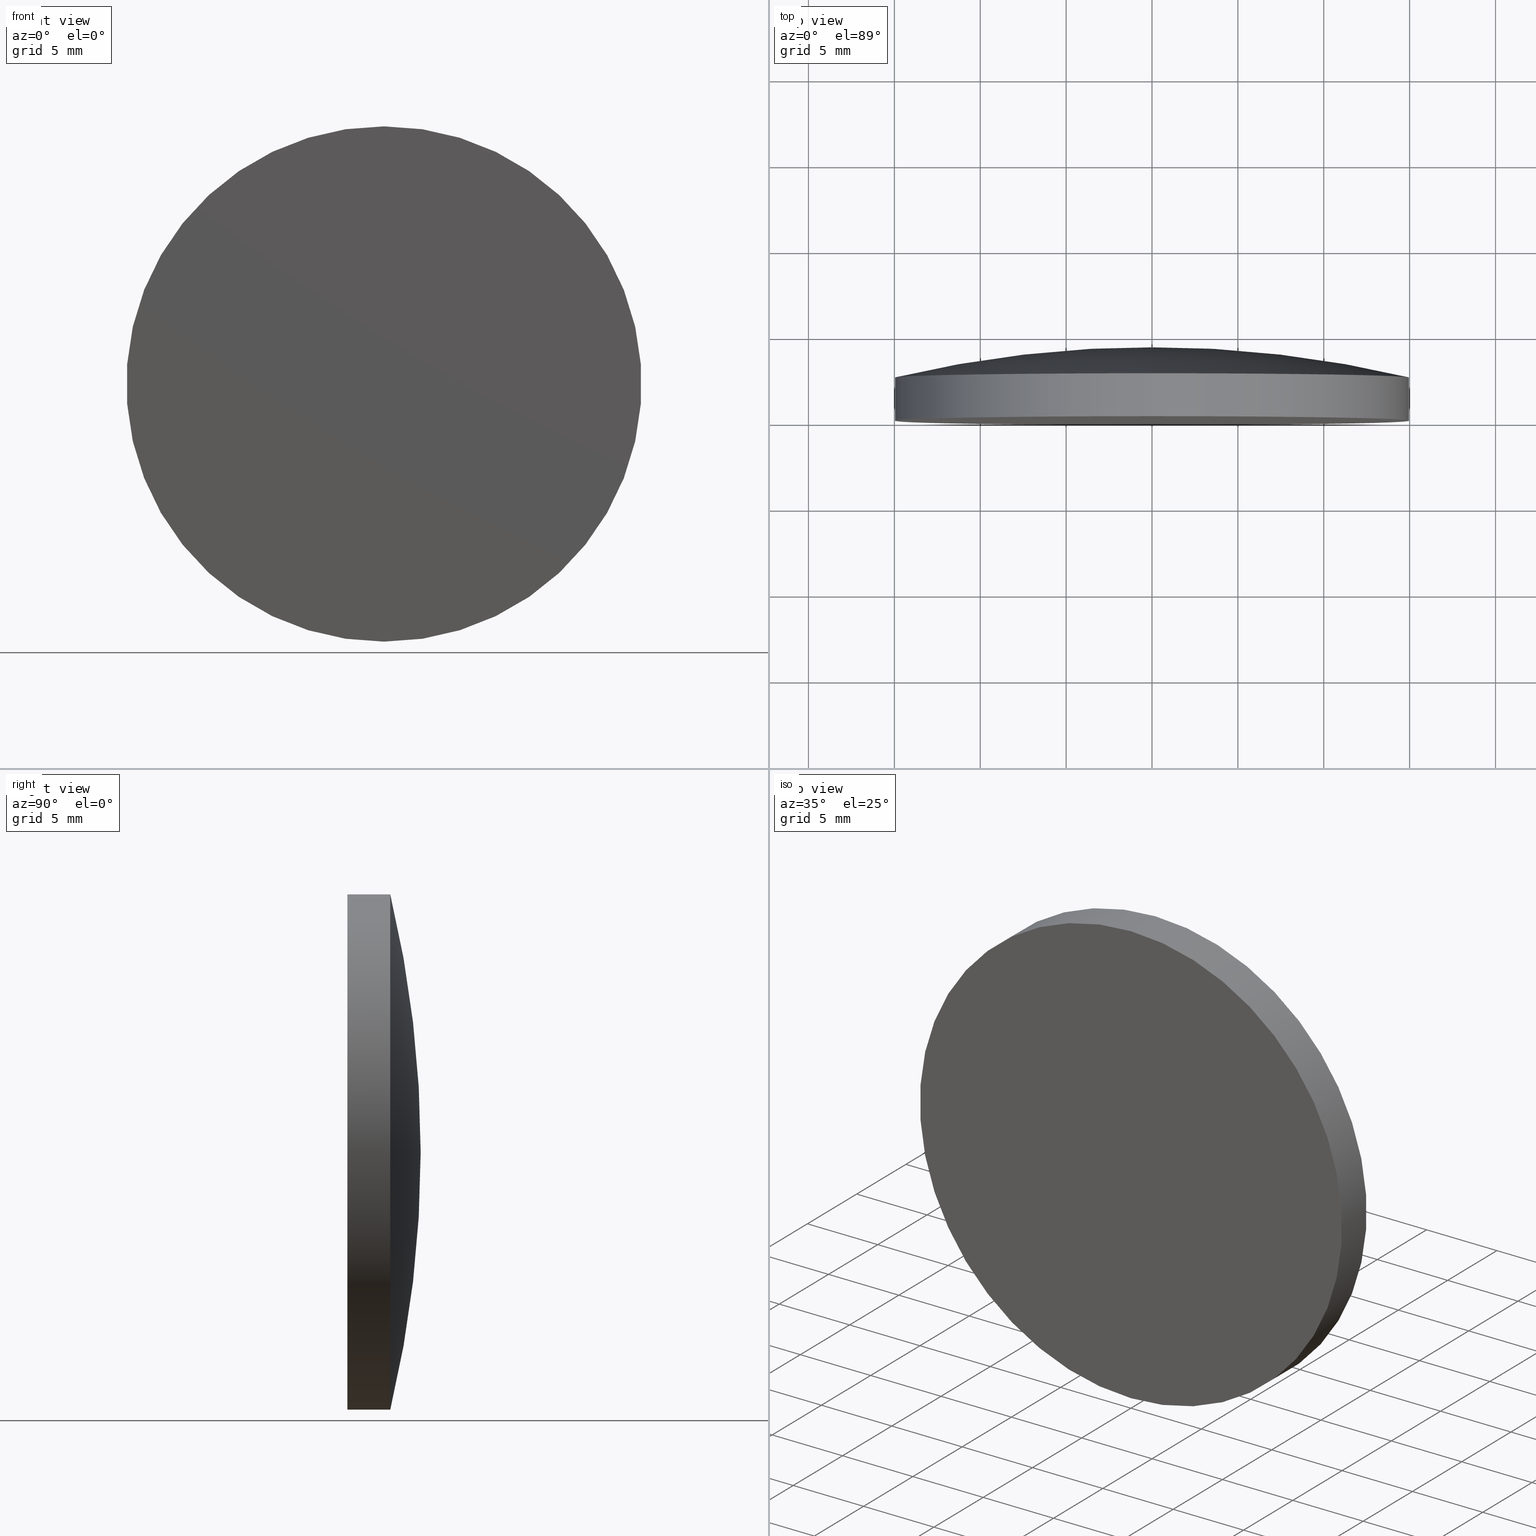
[diagram: canonical four-view strip — front | top / right | iso, engineering-drawing reading convention]
A machine part, canonical four-view strip (front | top / right | iso — engineering-drawing reading convention). The complete STEP part file that produces these views, byte-faithful:
ISO-10303-21;
HEADER;
FILE_DESCRIPTION (( 'STEP AP203' ),
    '1' );
FILE_NAME ('100553.STEP',
    '2024-05-09T01:20:41',
    ( '' ),
    ( '' ),
    'SwSTEP 2.0',
    'SolidWorks 2020',
    '' );
FILE_SCHEMA (( 'CONFIG_CONTROL_DESIGN' ));
ENDSEC;

DATA;
#1 = CARTESIAN_POINT ( 'NONE',  ( -1.527117152912117945E-18, -60.27999879552781692, 0.01246985787228902659 ) ) ;
#2 = MECHANICAL_CONTEXT ( 'NONE', #135, 'mechanical' ) ;
#3 = PERSON_AND_ORGANIZATION ( #26, #69 ) ;
#4 = APPROVAL ( #105, 'δָ��' ) ;
#5 = CARTESIAN_POINT ( 'NONE',  ( 1.836970198721029589E-15, -1.734723475976807094E-15, -15.00000000000000000 ) ) ;
#6 = EDGE_CURVE ( 'NONE', #97, #24, #102, .T. ) ;
#7 = PERSON_AND_ORGANIZATION ( #26, #69 ) ;
#8 = AXIS2_PLACEMENT_3D ( 'NONE', #77, #139, #15 ) ;
#9 = APPROVAL_STATUS ( 'not_yet_approved' ) ;
#10 = COORDINATED_UNIVERSAL_TIME_OFFSET ( 8, 0, .AHEAD. ) ;
#11 = AXIS2_PLACEMENT_3D ( 'NONE', #1, #18, #179 ) ;
#12 = DIRECTION ( 'NONE',  ( -0.000000000000000000, 1.000000000000000000, -0.000000000000000000 ) ) ;
#13 = CARTESIAN_POINT ( 'NONE',  ( 0.000000000000000000, -60.27999879552781692, -0.01246985787228902659 ) ) ;
#14 = CARTESIAN_POINT ( 'NONE',  ( 1.836970198721029589E-15, 2.499999999999996891, -15.00000000000000000 ) ) ;
#15 = DIRECTION ( 'NONE',  ( 0.000000000000000000, 0.000000000000000000, 1.000000000000000000 ) ) ;
#16 = LOCAL_TIME ( 9, 20, 41.00000000000000000, #57 ) ;
#17 = CARTESIAN_POINT ( 'NONE',  ( 0.000000000000000000, 4.269999999999999574, 0.000000000000000000 ) ) ;
#18 = DIRECTION ( 'NONE',  ( 1.000000000000000000, 0.000000000000000000, 1.224646799147353207E-16 ) ) ;
#19 = ADVANCED_FACE ( 'NONE', ( #184 ), #100, .T. ) ;
#20 = APPROVAL_ROLE ( '' ) ;
#21 = DATE_AND_TIME ( #117, #16 ) ;
#22 = CC_DESIGN_APPROVAL ( #130, ( #68 ) ) ;
#23 = DIRECTION ( 'NONE',  ( 0.000000000000000000, 0.000000000000000000, 1.000000000000000000 ) ) ;
#24 = VERTEX_POINT ( 'NONE', #65 ) ;
#25 = APPROVAL_DATE_TIME ( #168, #4 ) ;
#26 = PERSON ( 'δָ��', 'δָ��', 'δָ��', ('δָ��'), ('δָ��'), ('δָ��') ) ;
#27 = AXIS2_PLACEMENT_3D ( 'NONE', #73, #134, #193 ) ;
#28 = PERSON_AND_ORGANIZATION_ROLE ( 'classification_officer' ) ;
#29 = ORIENTED_EDGE ( 'NONE', *, *, #186, .F. ) ;
#30 = TOROIDAL_SURFACE ( 'NONE', #27, -0.01246985787228902659, 64.54999999999998295 ) ;
#31 = DIRECTION ( 'NONE',  ( -1.000000000000000000, 0.000000000000000000, 0.000000000000000000 ) ) ;
#32 = MANIFOLD_SOLID_BREP ( '��ת1', #138 ) ;
#33 = DIRECTION ( 'NONE',  ( 0.000000000000000000, 0.000000000000000000, 1.000000000000000000 ) ) ;
#34 = CC_DESIGN_DATE_AND_TIME_ASSIGNMENT ( #21, #71, ( #68 ) ) ;
#35 = CYLINDRICAL_SURFACE ( 'NONE', #163, 15.00000000000000000 ) ;
#36 = FACE_OUTER_BOUND ( 'NONE', #93, .T. ) ;
#37 = APPROVAL_PERSON_ORGANIZATION ( #125, #78, #183 ) ;
#38 = AXIS2_PLACEMENT_3D ( 'NONE', #62, #174, #33 ) ;
#39 = CALENDAR_DATE ( 2024, 9, 5 ) ;
#40 =( NAMED_UNIT ( * ) PLANE_ANGLE_UNIT ( ) SI_UNIT ( $, .RADIAN. ) );
#41 = CC_DESIGN_APPROVAL ( #4, ( #122 ) ) ;
#42 = CALENDAR_DATE ( 2024, 9, 5 ) ;
#43 = DATE_AND_TIME ( #39, #111 ) ;
#44 = SHAPE_DEFINITION_REPRESENTATION ( #53, #84 ) ;
#45 = DATE_AND_TIME ( #158, #72 ) ;
#46 = DIRECTION ( 'NONE',  ( 0.000000000000000000, 0.000000000000000000, 1.000000000000000000 ) ) ;
#47 = SECURITY_CLASSIFICATION ( '', '', #150 ) ;
#48 = ORIENTED_EDGE ( 'NONE', *, *, #186, .T. ) ;
#49 = CARTESIAN_POINT ( 'NONE',  ( 0.000000000000000000, -9.184850993605147944E-16, 0.000000000000000000 ) ) ;
#50 = DIRECTION ( 'NONE',  ( -0.000000000000000000, 1.000000000000000000, -0.000000000000000000 ) ) ;
#51 = AXIS2_PLACEMENT_3D ( 'NONE', #156, #50, #126 ) ;
#52 = EDGE_CURVE ( 'NONE', #97, #190, #76, .T. ) ;
#53 = PRODUCT_DEFINITION_SHAPE ( 'NONE', 'NONE',  #68 ) ;
#54 = ORIENTED_EDGE ( 'NONE', *, *, #58, .T. ) ;
#55 = CC_DESIGN_PERSON_AND_ORGANIZATION_ASSIGNMENT ( #3, #70, ( #68 ) ) ;
#56 = APPLICATION_PROTOCOL_DEFINITION ( 'international standard', 'config_control_design', 1994, #80 ) ;
#57 = COORDINATED_UNIVERSAL_TIME_OFFSET ( 8, 0, .AHEAD. ) ;
#58 = EDGE_CURVE ( 'NONE', #190, #97, #85, .T. ) ;
#59 = APPROVAL_ROLE ( '' ) ;
#60 = CIRCLE ( 'NONE', #116, 64.54999999999998295 ) ;
#61 = ORIENTED_EDGE ( 'NONE', *, *, #58, .F. ) ;
#62 = CARTESIAN_POINT ( 'NONE',  ( 0.000000000000000000, -60.27999879552781692, 0.000000000000000000 ) ) ;
#63 = DIRECTION ( 'NONE',  ( 0.000000000000000000, 0.000000000000000000, 1.000000000000000000 ) ) ;
#64 = AXIS2_PLACEMENT_3D ( 'NONE', #164, #23, #175 ) ;
#65 = CARTESIAN_POINT ( 'NONE',  ( 0.000000000000000000, 2.499999999999996891, 15.00000000000000000 ) ) ;
#66 = DIRECTION ( 'NONE',  ( 0.000000000000000000, -0.000000000000000000, -1.000000000000000000 ) ) ;
#67 = VECTOR ( 'NONE', #81, 1000.000000000000000 ) ;
#68 = PRODUCT_DEFINITION ( 'δ֪', '', #122, #128 ) ;
#69 = ORGANIZATION ( 'δָ��', 'δָ��', '' ) ;
#70 = PERSON_AND_ORGANIZATION_ROLE ( 'creator' ) ;
#71 = DATE_TIME_ROLE ( 'creation_date' ) ;
#72 = LOCAL_TIME ( 9, 20, 41.00000000000000000, #180 ) ;
#73 = CARTESIAN_POINT ( 'NONE',  ( 0.000000000000000000, -60.27999879552781692, 0.000000000000000000 ) ) ;
#74 = ORIENTED_EDGE ( 'NONE', *, *, #52, .F. ) ;
#75 = AXIS2_PLACEMENT_3D ( 'NONE', #199, #159, #46 ) ;
#76 = CIRCLE ( 'NONE', #75, 15.00000000000000000 ) ;
#77 = CARTESIAN_POINT ( 'NONE',  ( 0.000000000000000000, -1.734723475976807094E-15, 0.000000000000000000 ) ) ;
#78 = APPROVAL ( #9, 'δָ��' ) ;
#79 = CARTESIAN_POINT ( 'NONE',  ( 0.000000000000000000, 4.269999999999999574, 15.00000000000000000 ) ) ;
#80 = APPLICATION_CONTEXT ( 'configuration controlled 3d designs of mechanical parts and assemblies' ) ;
#81 = DIRECTION ( 'NONE',  ( -0.000000000000000000, 1.000000000000000000, -0.000000000000000000 ) ) ;
#82 = TOROIDAL_SURFACE ( 'NONE', #38, -0.01246985787228902659, 64.54999999999998295 ) ;
#83 = PLANE ( 'NONE',  #133 ) ;
#84 = ADVANCED_BREP_SHAPE_REPRESENTATION ( '100553', ( #32, #64 ), #143 ) ;
#85 = CIRCLE ( 'NONE', #8, 15.00000000000000000 ) ;
#86 = CC_DESIGN_PERSON_AND_ORGANIZATION_ASSIGNMENT ( #118, #149, ( #122 ) ) ;
#87 = DIRECTION ( 'NONE',  ( 0.000000000000000000, 0.000000000000000000, 1.000000000000000000 ) ) ;
#88 = APPROVAL_DATE_TIME ( #43, #130 ) ;
#89 = AXIS2_PLACEMENT_3D ( 'NONE', #145, #197, #63 ) ;
#90 = COORDINATED_UNIVERSAL_TIME_OFFSET ( 8, 0, .AHEAD. ) ;
#91 = CC_DESIGN_PERSON_AND_ORGANIZATION_ASSIGNMENT ( #178, #92, ( #122 ) ) ;
#92 = PERSON_AND_ORGANIZATION_ROLE ( 'design_supplier' ) ;
#93 = EDGE_LOOP ( 'NONE', ( #198, #160, #142, #129 ) ) ;
#94 = COORDINATED_UNIVERSAL_TIME_OFFSET ( 8, 0, .AHEAD. ) ;
#95 = CIRCLE ( 'NONE', #11, 64.54999999999998295 ) ;
#96 = CC_DESIGN_PERSON_AND_ORGANIZATION_ASSIGNMENT ( #108, #28, ( #47 ) ) ;
#97 = VERTEX_POINT ( 'NONE', #114 ) ;
#98 = DATE_AND_TIME ( #121, #148 ) ;
#99 = ORIENTED_EDGE ( 'NONE', *, *, #170, .F. ) ;
#100 = CYLINDRICAL_SURFACE ( 'NONE', #192, 15.00000000000000000 ) ;
#101 = EDGE_LOOP ( 'NONE', ( #153, #54, #194, #99 ) ) ;
#102 = LINE ( 'NONE', #79, #187 ) ;
#103 = ADVANCED_FACE ( 'NONE', ( #195 ), #83, .T. ) ;
#104 = PERSON_AND_ORGANIZATION_ROLE ( 'design_owner' ) ;
#105 = APPROVAL_STATUS ( 'not_yet_approved' ) ;
#106 = EDGE_LOOP ( 'NONE', ( #29, #185, #171 ) ) ;
#107 = UNCERTAINTY_MEASURE_WITH_UNIT (LENGTH_MEASURE( 1.000000000000000082E-05 ), #152, 'distance_accuracy_value', 'NONE');
#108 = PERSON_AND_ORGANIZATION ( #26, #69 ) ;
#109 = ADVANCED_FACE ( 'NONE', ( #113 ), #82, .T. ) ;
#110 = CARTESIAN_POINT ( 'NONE',  ( 1.836970198721029589E-15, 4.269999999999999574, -15.00000000000000000 ) ) ;
#111 = LOCAL_TIME ( 9, 20, 41.00000000000000000, #94 ) ;
#112 = CARTESIAN_POINT ( 'NONE',  ( 0.000000000000000000, 4.269999999999999574, 0.000000000000000000 ) ) ;
#113 = FACE_OUTER_BOUND ( 'NONE', #151, .T. ) ;
#114 = CARTESIAN_POINT ( 'NONE',  ( 0.000000000000000000, -1.734723475976807094E-15, 15.00000000000000000 ) ) ;
#115 = ORIENTED_EDGE ( 'NONE', *, *, #141, .F. ) ;
#116 = AXIS2_PLACEMENT_3D ( 'NONE', #13, #31, #173 ) ;
#117 = CALENDAR_DATE ( 2024, 9, 5 ) ;
#118 = PERSON_AND_ORGANIZATION ( #26, #69 ) ;
#119 =( NAMED_UNIT ( * ) SI_UNIT ( $, .STERADIAN. ) SOLID_ANGLE_UNIT ( ) );
#120 = CC_DESIGN_PERSON_AND_ORGANIZATION_ASSIGNMENT ( #191, #104, ( #200 ) ) ;
#121 = CALENDAR_DATE ( 2024, 9, 5 ) ;
#122 = PRODUCT_DEFINITION_FORMATION_WITH_SPECIFIED_SOURCE ( '�κ�', '', #200, .NOT_KNOWN. ) ;
#123 = EDGE_LOOP ( 'NONE', ( #74, #61 ) ) ;
#124 = DIRECTION ( 'NONE',  ( -0.000000000000000000, 1.000000000000000000, -0.000000000000000000 ) ) ;
#125 = PERSON_AND_ORGANIZATION ( #26, #69 ) ;
#126 = DIRECTION ( 'NONE',  ( 0.000000000000000000, 0.000000000000000000, 1.000000000000000000 ) ) ;
#127 = VERTEX_POINT ( 'NONE', #14 ) ;
#128 = DESIGN_CONTEXT ( 'detailed design', #80, 'design' ) ;
#129 = ORIENTED_EDGE ( 'NONE', *, *, #6, .F. ) ;
#130 = APPROVAL ( #165, 'δָ��' ) ;
#131 = CIRCLE ( 'NONE', #51, 15.00000000000000000 ) ;
#132 = FACE_OUTER_BOUND ( 'NONE', #106, .T. ) ;
#133 = AXIS2_PLACEMENT_3D ( 'NONE', #49, #144, #66 ) ;
#134 = DIRECTION ( 'NONE',  ( -0.000000000000000000, 1.000000000000000000, -0.000000000000000000 ) ) ;
#135 = APPLICATION_CONTEXT ( 'configuration controlled 3d designs of mechanical parts and assemblies' ) ;
#136 = EDGE_CURVE ( 'NONE', #190, #127, #182, .T. ) ;
#137 = VERTEX_POINT ( 'NONE', #112 ) ;
#138 = CLOSED_SHELL ( 'NONE', ( #166, #109, #189, #103, #19 ) ) ;
#139 = DIRECTION ( 'NONE',  ( -0.000000000000000000, 1.000000000000000000, -0.000000000000000000 ) ) ;
#140 = CARTESIAN_POINT ( 'NONE',  ( 0.000000000000000000, 4.269999999999999574, 0.000000000000000000 ) ) ;
#141 = EDGE_CURVE ( 'NONE', #24, #137, #60, .T. ) ;
#142 = ORIENTED_EDGE ( 'NONE', *, *, #157, .F. ) ;
#143 =( GEOMETRIC_REPRESENTATION_CONTEXT ( 3 ) GLOBAL_UNCERTAINTY_ASSIGNED_CONTEXT ( ( #107 ) ) GLOBAL_UNIT_ASSIGNED_CONTEXT ( ( #152, #40, #119 ) ) REPRESENTATION_CONTEXT ( 'NONE', 'WORKASPACE' ) );
#144 = DIRECTION ( 'NONE',  ( 0.000000000000000000, -1.000000000000000000, 0.000000000000000000 ) ) ;
#145 = CARTESIAN_POINT ( 'NONE',  ( 0.000000000000000000, 2.499999999999998224, 0.000000000000000000 ) ) ;
#146 = PRODUCT_RELATED_PRODUCT_CATEGORY ( 'detail', '', ( #200 ) ) ;
#147 = APPLICATION_PROTOCOL_DEFINITION ( 'international standard', 'config_control_design', 1994, #135 ) ;
#148 = LOCAL_TIME ( 9, 20, 41.00000000000000000, #10 ) ;
#149 = PERSON_AND_ORGANIZATION_ROLE ( 'creator' ) ;
#150 = SECURITY_CLASSIFICATION_LEVEL ( 'unclassified' ) ;
#151 = EDGE_LOOP ( 'NONE', ( #181, #48, #115 ) ) ;
#152 =( LENGTH_UNIT ( ) NAMED_UNIT ( * ) SI_UNIT ( .MILLI., .METRE. ) );
#153 = ORIENTED_EDGE ( 'NONE', *, *, #136, .F. ) ;
#154 = LOCAL_TIME ( 9, 20, 41.00000000000000000, #90 ) ;
#155 = DATE_TIME_ROLE ( 'classification_date' ) ;
#156 = CARTESIAN_POINT ( 'NONE',  ( 0.000000000000000000, 2.499999999999998224, 0.000000000000000000 ) ) ;
#157 = EDGE_CURVE ( 'NONE', #24, #127, #131, .T. ) ;
#158 = CALENDAR_DATE ( 2024, 9, 5 ) ;
#159 = DIRECTION ( 'NONE',  ( -0.000000000000000000, 1.000000000000000000, -0.000000000000000000 ) ) ;
#160 = ORIENTED_EDGE ( 'NONE', *, *, #136, .T. ) ;
#161 = APPROVAL_PERSON_ORGANIZATION ( #7, #130, #20 ) ;
#162 = DIRECTION ( 'NONE',  ( -0.000000000000000000, 1.000000000000000000, -0.000000000000000000 ) ) ;
#163 = AXIS2_PLACEMENT_3D ( 'NONE', #140, #162, #87 ) ;
#164 = CARTESIAN_POINT ( 'NONE',  ( 0.000000000000000000, 0.000000000000000000, 0.000000000000000000 ) ) ;
#165 = APPROVAL_STATUS ( 'not_yet_approved' ) ;
#166 = ADVANCED_FACE ( 'NONE', ( #36 ), #35, .T. ) ;
#167 = APPROVAL_PERSON_ORGANIZATION ( #177, #4, #59 ) ;
#168 = DATE_AND_TIME ( #42, #154 ) ;
#169 = CC_DESIGN_APPROVAL ( #78, ( #47 ) ) ;
#170 = EDGE_CURVE ( 'NONE', #127, #24, #176, .T. ) ;
#171 = ORIENTED_EDGE ( 'NONE', *, *, #141, .T. ) ;
#172 = DIRECTION ( 'NONE',  ( 0.000000000000000000, 0.000000000000000000, 1.000000000000000000 ) ) ;
#173 = DIRECTION ( 'NONE',  ( 0.000000000000000000, 0.000000000000000000, 1.000000000000000000 ) ) ;
#174 = DIRECTION ( 'NONE',  ( -0.000000000000000000, 1.000000000000000000, -0.000000000000000000 ) ) ;
#175 = DIRECTION ( 'NONE',  ( 1.000000000000000000, 0.000000000000000000, 0.000000000000000000 ) ) ;
#176 = CIRCLE ( 'NONE', #89, 15.00000000000000000 ) ;
#177 = PERSON_AND_ORGANIZATION ( #26, #69 ) ;
#178 = PERSON_AND_ORGANIZATION ( #26, #69 ) ;
#179 = DIRECTION ( 'NONE',  ( 1.224646799147352961E-16, 0.000000000000000000, -1.000000000000000000 ) ) ;
#180 = COORDINATED_UNIVERSAL_TIME_OFFSET ( 8, 0, .AHEAD. ) ;
#181 = ORIENTED_EDGE ( 'NONE', *, *, #157, .T. ) ;
#182 = LINE ( 'NONE', #110, #67 ) ;
#183 = APPROVAL_ROLE ( '' ) ;
#184 = FACE_OUTER_BOUND ( 'NONE', #101, .T. ) ;
#185 = ORIENTED_EDGE ( 'NONE', *, *, #170, .T. ) ;
#186 = EDGE_CURVE ( 'NONE', #127, #137, #95, .T. ) ;
#187 = VECTOR ( 'NONE', #124, 1000.000000000000000 ) ;
#188 = CC_DESIGN_SECURITY_CLASSIFICATION ( #47, ( #122 ) ) ;
#189 = ADVANCED_FACE ( 'NONE', ( #132 ), #30, .T. ) ;
#190 = VERTEX_POINT ( 'NONE', #5 ) ;
#191 = PERSON_AND_ORGANIZATION ( #26, #69 ) ;
#192 = AXIS2_PLACEMENT_3D ( 'NONE', #17, #12, #172 ) ;
#193 = DIRECTION ( 'NONE',  ( 0.000000000000000000, 0.000000000000000000, 1.000000000000000000 ) ) ;
#194 = ORIENTED_EDGE ( 'NONE', *, *, #6, .T. ) ;
#195 = FACE_OUTER_BOUND ( 'NONE', #123, .T. ) ;
#196 = APPROVAL_DATE_TIME ( #45, #78 ) ;
#197 = DIRECTION ( 'NONE',  ( -0.000000000000000000, 1.000000000000000000, -0.000000000000000000 ) ) ;
#198 = ORIENTED_EDGE ( 'NONE', *, *, #52, .T. ) ;
#199 = CARTESIAN_POINT ( 'NONE',  ( 0.000000000000000000, -1.734723475976807094E-15, 0.000000000000000000 ) ) ;
#200 = PRODUCT ( '100553', '100553', '', ( #2 ) ) ;
#201 = CC_DESIGN_DATE_AND_TIME_ASSIGNMENT ( #98, #155, ( #47 ) ) ;
ENDSEC;
END-ISO-10303-21;
